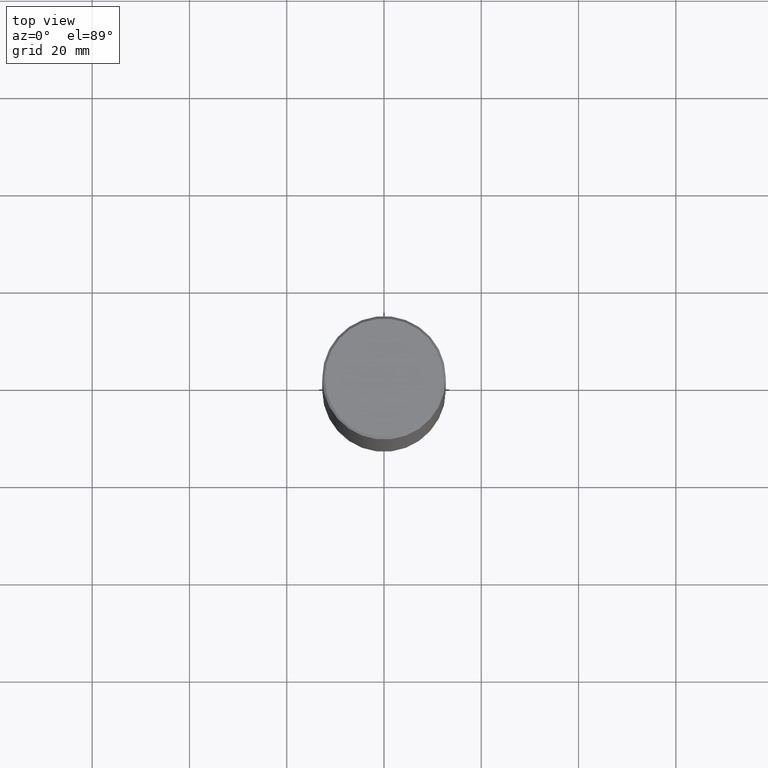
[diagram: clean part render]
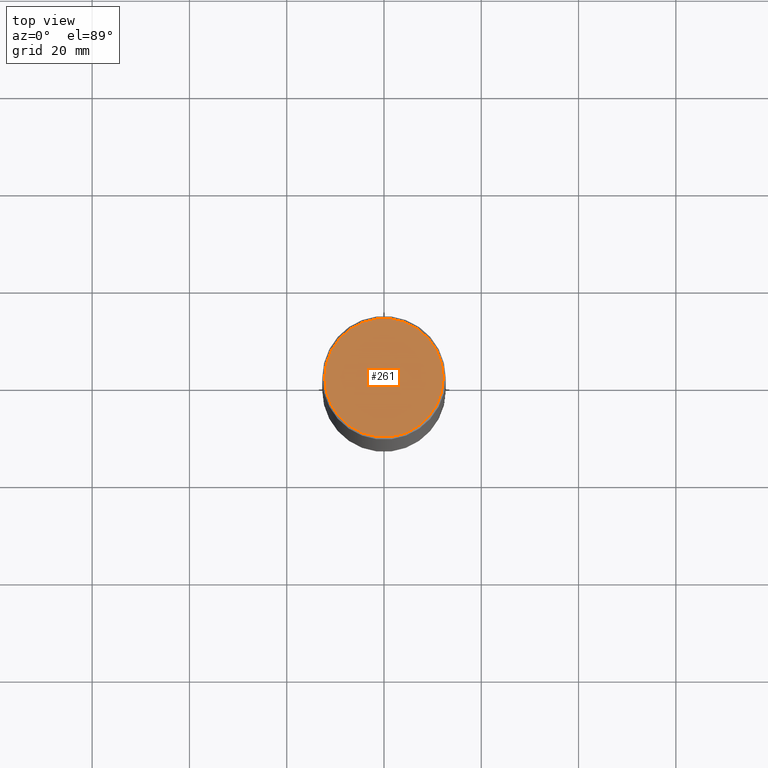
[diagram: same view with one face highlighted and labeled with its STEP entity id]
A machine part, top view. The second image highlights one B-rep face of the part: STEP entity #261.
In plain terms, the highlighted planar face has unit normal (0, -0, -1).
Its self-contained STEP definition (entity closure, byte-faithful):
#2 = EDGE_CURVE ( 'NONE', #50, #18, #135, .T. ) ;
#9 = CARTESIAN_POINT ( 'NONE',  ( -0.4799999999999999267, 3.386736898677839197E-15, 1.195183497227879609E-16 ) ) ;
#18 = VERTEX_POINT ( 'NONE', #209 ) ;
#25 = PLANE ( 'NONE',  #160 ) ;
#50 = VERTEX_POINT ( 'NONE', #9 ) ;
#55 = ORIENTED_EDGE ( 'NONE', *, *, #163, .T. ) ;
#76 = AXIS2_PLACEMENT_3D ( 'NONE', #398, #374, #339 ) ;
#90 = DIRECTION ( 'NONE',  ( 1.000000000000000000, -6.982962677686266711E-15, 4.874852205035277589E-29 ) ) ;
#135 = CIRCLE ( 'NONE', #76, 0.4799999999999999267 ) ;
#147 = DIRECTION ( 'NONE',  ( -2.445468806185136597E-29, 3.491481338843145583E-15, 1.000000000000000000 ) ) ;
#154 = AXIS2_PLACEMENT_3D ( 'NONE', #352, #147, #90 ) ;
#160 = AXIS2_PLACEMENT_3D ( 'NONE', #246, #381, #217 ) ;
#163 = EDGE_CURVE ( 'NONE', #18, #50, #237, .T. ) ;
#209 = CARTESIAN_POINT ( 'NONE',  ( 0.4799999999999999267, -3.396558832296482099E-15, 1.195183497228351200E-16 ) ) ;
#217 = DIRECTION ( 'NONE',  ( -1.000000000000000000, 6.982962677686265922E-15, -4.876176775795935793E-29 ) ) ;
#221 = FACE_OUTER_BOUND ( 'NONE', #369, .T. ) ;
#237 = CIRCLE ( 'NONE', #154, 0.4799999999999999267 ) ;
#246 = CARTESIAN_POINT ( 'NONE',  ( 3.351822085289407153E-15, 0.4799999999999999267, -1.616151867783303914E-15 ) ) ;
#261 = ADVANCED_FACE ( 'NONE', ( #221 ), #25, .F. ) ;
#294 = ORIENTED_EDGE ( 'NONE', *, *, #2, .T. ) ;
#339 = DIRECTION ( 'NONE',  ( 1.000000000000000000, -6.982962677686266711E-15, 4.874852205035277589E-29 ) ) ;
#352 = CARTESIAN_POINT ( 'NONE',  ( -2.922783960138615261E-45, 4.172960877065252270E-31, 1.195183497228115035E-16 ) ) ;
#369 = EDGE_LOOP ( 'NONE', ( #294, #55 ) ) ;
#374 = DIRECTION ( 'NONE',  ( -2.445468806185136597E-29, 3.491481338843145583E-15, 1.000000000000000000 ) ) ;
#381 = DIRECTION ( 'NONE',  ( 2.438088387897960049E-29, -3.491481338843145188E-15, -1.000000000000000000 ) ) ;
#398 = CARTESIAN_POINT ( 'NONE',  ( -2.922783960138615261E-45, 4.172960877065252270E-31, 1.195183497228115035E-16 ) ) ;